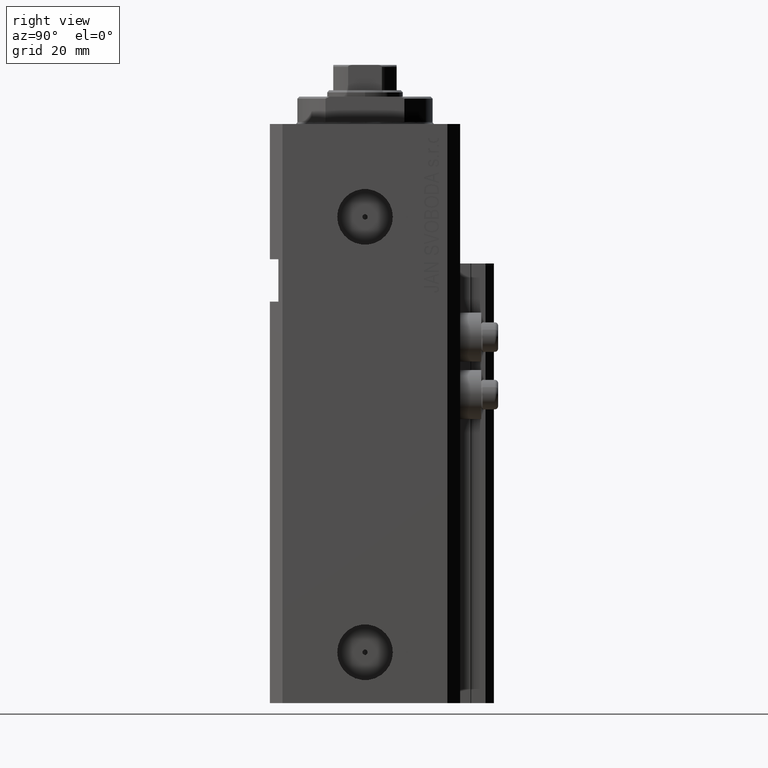
[diagram: clean part render]
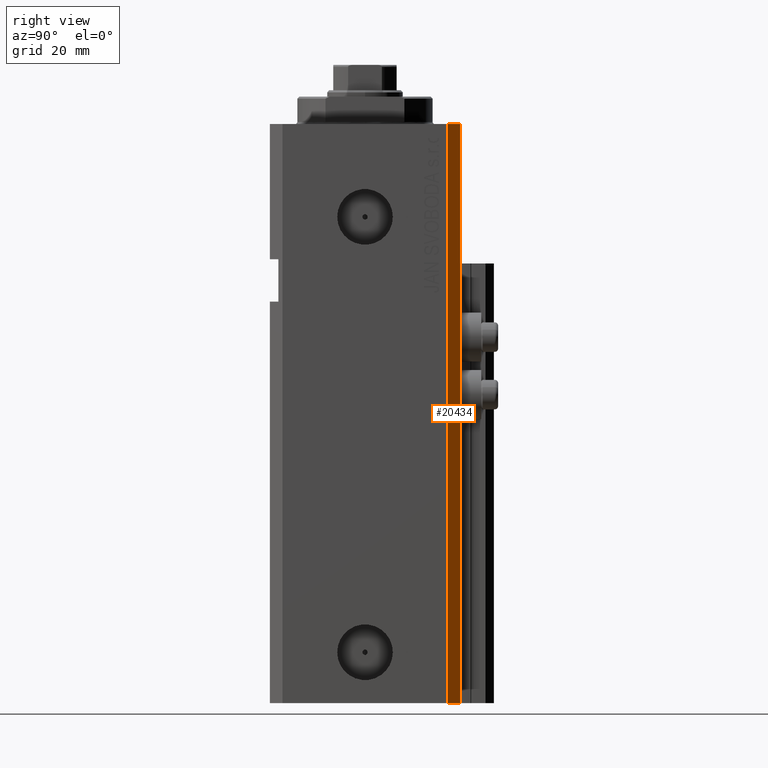
[diagram: same view with one face highlighted and labeled with its STEP entity id]
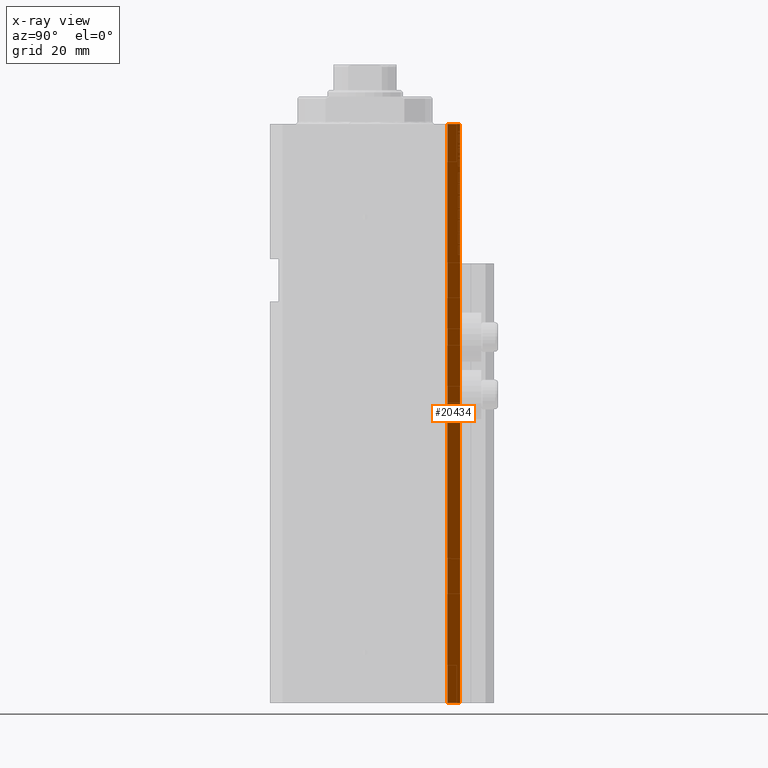
[diagram: x-ray of the same camera — body ghosted, the highlighted face saturated]
A machine part, right view. The second image highlights one B-rep face of the part: STEP entity #20434.
The next image is the same camera in x-ray: the body ghosted, the highlighted face saturated — about 0% of this face is hidden behind the body in this view.
In plain terms, the highlighted planar face has unit normal (0.7071, 0.7071, 0).
Its self-contained STEP definition (entity closure, byte-faithful):
#414 = VECTOR ( 'NONE', #33366, 1000.000000000000000 ) ;
#776 = EDGE_CURVE ( 'NONE', #7717, #41183, #30522, .T. ) ;
#3174 = ORIENTED_EDGE ( 'NONE', *, *, #37715, .T. ) ;
#6120 = VERTEX_POINT ( 'NONE', #15089 ) ;
#7281 = CARTESIAN_POINT ( 'NONE',  ( 29.49999999999707967, 22.49999999999951328, -137.0000000000000000 ) ) ;
#7717 = VERTEX_POINT ( 'NONE', #21304 ) ;
#7994 = DIRECTION ( 'NONE',  ( -0.7071067811865352493, 0.7071067811865597852, 0.000000000000000000 ) ) ;
#8994 = VECTOR ( 'NONE', #37017, 1000.000000000000000 ) ;
#9520 = DIRECTION ( 'NONE',  ( 0.7071067811865597852, 0.7071067811865353603, -0.000000000000000000 ) ) ;
#12008 = CARTESIAN_POINT ( 'NONE',  ( 32.49999999999702993, 19.49999999999945999, -137.0000000000000000 ) ) ;
#12259 = DIRECTION ( 'NONE',  ( 0.000000000000000000, 0.000000000000000000, 1.000000000000000000 ) ) ;
#12918 = CARTESIAN_POINT ( 'NONE',  ( 32.49999999999702993, 19.49999999999945999, 0.000000000000000000 ) ) ;
#15089 = CARTESIAN_POINT ( 'NONE',  ( 29.49999999999707967, 22.49999999999951328, 0.000000000000000000 ) ) ;
#17541 = PLANE ( 'NONE',  #39311 ) ;
#19558 = EDGE_LOOP ( 'NONE', ( #21636, #43437, #3174, #25185 ) ) ;
#20434 = ADVANCED_FACE ( 'NONE', ( #43646 ), #17541, .T. ) ;
#21304 = CARTESIAN_POINT ( 'NONE',  ( 32.49999999999702993, 19.49999999999945999, -137.0000000000000000 ) ) ;
#21636 = ORIENTED_EDGE ( 'NONE', *, *, #45528, .F. ) ;
#21902 = LINE ( 'NONE', #41150, #39634 ) ;
#25185 = ORIENTED_EDGE ( 'NONE', *, *, #36983, .T. ) ;
#29515 = VECTOR ( 'NONE', #12259, 1000.000000000000000 ) ;
#30522 = LINE ( 'NONE', #12008, #29515 ) ;
#31628 = CARTESIAN_POINT ( 'NONE',  ( 29.49999999999707967, 22.49999999999951328, -137.0000000000000000 ) ) ;
#33366 = DIRECTION ( 'NONE',  ( -0.7071067811865352493, 0.7071067811865597852, 0.000000000000000000 ) ) ;
#33607 = LINE ( 'NONE', #44595, #414 ) ;
#35358 = DIRECTION ( 'NONE',  ( -0.7071067811865353603, 0.7071067811865597852, 0.000000000000000000 ) ) ;
#36086 = CARTESIAN_POINT ( 'NONE',  ( 32.49999999999702993, 19.49999999999945999, -137.0000000000000000 ) ) ;
#36983 = EDGE_CURVE ( 'NONE', #46597, #6120, #37500, .T. ) ;
#37017 = DIRECTION ( 'NONE',  ( 0.000000000000000000, 0.000000000000000000, 1.000000000000000000 ) ) ;
#37500 = LINE ( 'NONE', #7281, #8994 ) ;
#37715 = EDGE_CURVE ( 'NONE', #7717, #46597, #33607, .T. ) ;
#39311 = AXIS2_PLACEMENT_3D ( 'NONE', #36086, #9520, #35358 ) ;
#39634 = VECTOR ( 'NONE', #7994, 1000.000000000000000 ) ;
#41150 = CARTESIAN_POINT ( 'NONE',  ( 32.49999999999702993, 19.49999999999945999, 0.000000000000000000 ) ) ;
#41183 = VERTEX_POINT ( 'NONE', #12918 ) ;
#43437 = ORIENTED_EDGE ( 'NONE', *, *, #776, .F. ) ;
#43646 = FACE_OUTER_BOUND ( 'NONE', #19558, .T. ) ;
#44595 = CARTESIAN_POINT ( 'NONE',  ( 32.49999999999702993, 19.49999999999945999, -137.0000000000000000 ) ) ;
#45528 = EDGE_CURVE ( 'NONE', #41183, #6120, #21902, .T. ) ;
#46597 = VERTEX_POINT ( 'NONE', #31628 ) ;